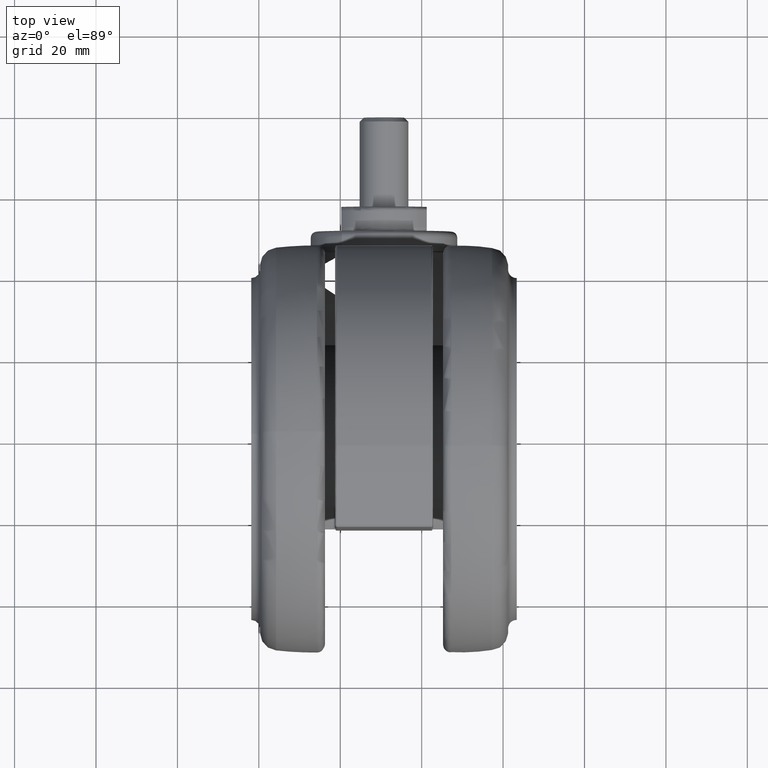
[diagram: clean part render]
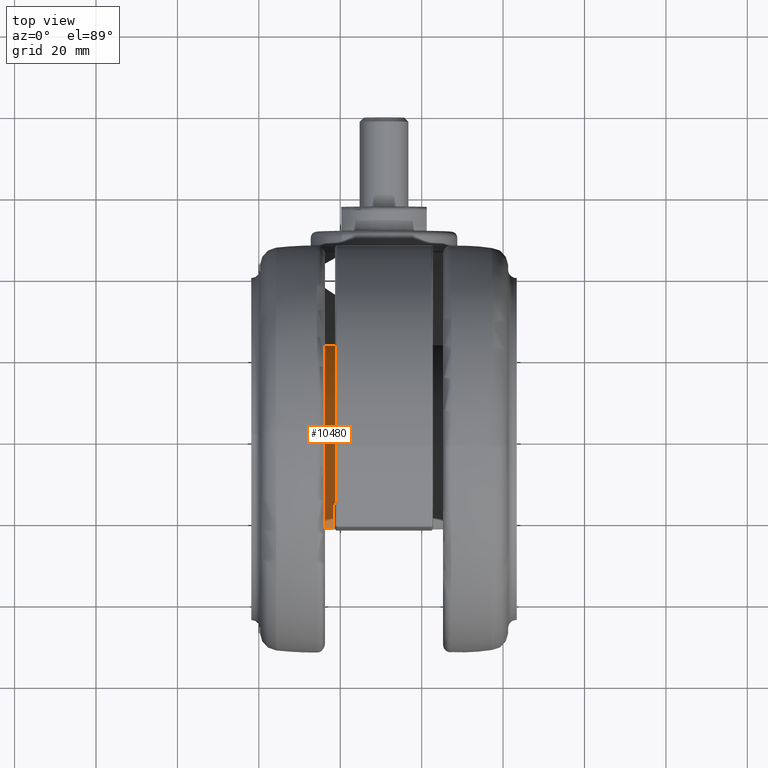
[diagram: same view with one face highlighted and labeled with its STEP entity id]
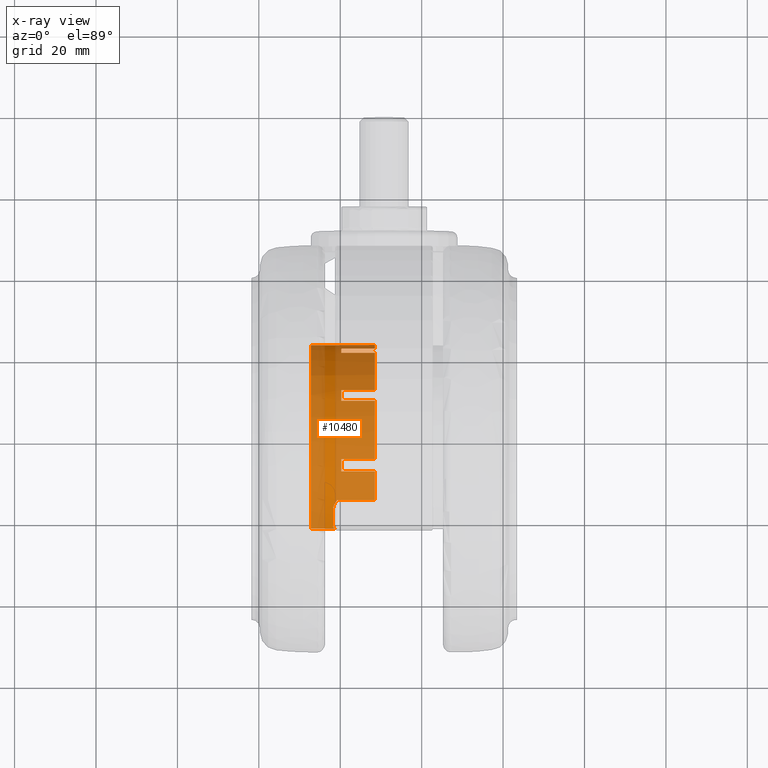
[diagram: x-ray of the same camera — body ghosted, the highlighted face saturated]
A machine part, top view. The second image highlights one B-rep face of the part: STEP entity #10480.
The next image is the same camera in x-ray: the body ghosted, the highlighted face saturated — about 81% of this face is hidden behind the body in this view.
In plain terms, the highlighted cylindrical surface (partial cylindrical patch) has radius 25.55 mm, axis along (1, 0, 0).
Its self-contained STEP definition (entity closure, byte-faithful):
#114 = CARTESIAN_POINT ( 'NONE',  ( 25.25466294829653800, -3.878723060543278300, -44.94061224646511500 ) ) ;
#608 = EDGE_CURVE ( 'NONE', #28450, #16110, #23276, .T. ) ;
#912 = ORIENTED_EDGE ( 'NONE', *, *, #608, .T. ) ;
#943 = CARTESIAN_POINT ( 'NONE',  ( 24.49189158133306100, 7.275853297856507100, -34.85000000000001600 ) ) ;
#1096 = DIRECTION ( 'NONE',  ( -1.049160742689344900E-014, 1.000000000000000000, 0.0000000000000000000 ) ) ;
#1612 = DIRECTION ( 'NONE',  ( 0.0000000000000000000, 0.0000000000000000000, 1.000000000000000000 ) ) ;
#1819 = EDGE_CURVE ( 'NONE', #12330, #40342, #8002, .T. ) ;
#2005 = ORIENTED_EDGE ( 'NONE', *, *, #67107, .T. ) ;
#3130 = CIRCLE ( 'NONE', #25002, 25.55000000000000100 ) ;
#3196 = CARTESIAN_POINT ( 'NONE',  ( -0.0002389668261144548000, 0.0000000000000000000, -45.10000000000001600 ) ) ;
#3420 = EDGE_CURVE ( 'NONE', #48865, #11404, #28216, .T. ) ;
#4076 = CARTESIAN_POINT ( 'NONE',  ( 25.45385519112096200, -2.211694056230213000, -51.10000000000000900 ) ) ;
#4341 = EDGE_CURVE ( 'NONE', #17229, #26471, #34746, .T. ) ;
#4469 = ORIENTED_EDGE ( 'NONE', *, *, #58307, .T. ) ;
#5046 = ORIENTED_EDGE ( 'NONE', *, *, #32058, .T. ) ;
#5110 = CARTESIAN_POINT ( 'NONE',  ( -12.97659623477730600, 22.00946732782261300, -44.10000000000001600 ) ) ;
#5610 = LINE ( 'NONE', #41087, #51151 ) ;
#6011 = VERTEX_POINT ( 'NONE', #28675 ) ;
#6084 = CARTESIAN_POINT ( 'NONE',  ( 25.14111945924305400, -4.557567850544513600, -45.10000000000002300 ) ) ;
#6100 = LINE ( 'NONE', #34488, #67547 ) ;
#6106 = ORIENTED_EDGE ( 'NONE', *, *, #12474, .T. ) ;
#6253 = VECTOR ( 'NONE', #31823, 1000.000000000000000 ) ;
#6405 = CARTESIAN_POINT ( 'NONE',  ( 15.97570374277104400, -19.93920145190548300, -44.10000000000001600 ) ) ;
#6736 = CARTESIAN_POINT ( 'NONE',  ( 21.84054836176586500, -13.26044252424927800, -45.10000000000002300 ) ) ;
#6987 = VERTEX_POINT ( 'NONE', #68593 ) ;
#7264 = ORIENTED_EDGE ( 'NONE', *, *, #23135, .T. ) ;
#7420 = VERTEX_POINT ( 'NONE', #49704 ) ;
#7583 = CARTESIAN_POINT ( 'NONE',  ( -19.88946052371252900, 16.03812226730688900, -44.72771515723317000 ) ) ;
#7658 = CIRCLE ( 'NONE', #9670, 25.55000000000000100 ) ;
#8002 = LINE ( 'NONE', #38523, #23750 ) ;
#8267 = VERTEX_POINT ( 'NONE', #20962 ) ;
#8368 = ORIENTED_EDGE ( 'NONE', *, *, #43323, .T. ) ;
#9114 = VECTOR ( 'NONE', #41285, 1000.000000000000000 ) ;
#9179 = DIRECTION ( 'NONE',  ( 1.582067750417293900E-014, -1.000000000000000000, 0.0000000000000000000 ) ) ;
#9670 = AXIS2_PLACEMENT_3D ( 'NONE', #37253, #1612, #43238 ) ;
#9838 = CIRCLE ( 'NONE', #21915, 25.55000000000000100 ) ;
#9927 = EDGE_CURVE ( 'NONE', #6987, #64603, #60139, .T. ) ;
#9963 = EDGE_CURVE ( 'NONE', #56077, #37820, #47562, .T. ) ;
#10138 = CARTESIAN_POINT ( 'NONE',  ( -0.0002389668261144548000, 0.0000000000000000000, -38.60000000000000900 ) ) ;
#10176 = CARTESIAN_POINT ( 'NONE',  ( 14.08499318997662200, 21.31686503895380000, -34.85000000000001600 ) ) ;
#10461 = DIRECTION ( 'NONE',  ( 0.0000000000000000000, 0.0000000000000000000, -1.000000000000000000 ) ) ;
#10480 = ADVANCED_FACE ( 'NONE', ( #15840 ), #29827, .T. ) ;
#10847 = AXIS2_PLACEMENT_3D ( 'NONE', #31465, #73105, #37485 ) ;
#11357 = CARTESIAN_POINT ( 'NONE',  ( -2.912541867466345900, 25.38347871775896900, -51.10000000000000900 ) ) ;
#11404 = VERTEX_POINT ( 'NONE', #59905 ) ;
#11492 = AXIS2_PLACEMENT_3D ( 'NONE', #72378, #36742, #1096 ) ;
#12062 = B_SPLINE_CURVE_WITH_KNOTS ( 'NONE', 3,
 ( #7583, #13547, #19489, #61123, #25477, #67165, #31481, #73123 ),
 .UNSPECIFIED., .F., .F.,
 ( 4, 2, 2, 4 ),
 ( 0.0000000000000000000, 0.0003150366596726599600, 0.0006300733193453199200, 0.001260146638690652200 ),
 .UNSPECIFIED. ) ;
#12185 = CARTESIAN_POINT ( 'NONE',  ( 11.41809160755038700, 22.85660138546977300, -43.10000000000001600 ) ) ;
#12330 = VERTEX_POINT ( 'NONE', #23819 ) ;
#12355 = CARTESIAN_POINT ( 'NONE',  ( 15.53581716587186400, -20.28623258907077400, -44.58005316722654500 ) ) ;
#12367 = CIRCLE ( 'NONE', #57249, 25.55000000000000100 ) ;
#12474 = EDGE_CURVE ( 'NONE', #48818, #29142, #55536, .T. ) ;
#12706 = CARTESIAN_POINT ( 'NONE',  ( -5.945230450753645500, 24.84873389643883700, -43.10000000000001600 ) ) ;
#13079 = VECTOR ( 'NONE', #10461, 1000.000000000000000 ) ;
#13357 = CARTESIAN_POINT ( 'NONE',  ( -0.0002389668263877612200, 25.55000000000000100, -34.85000000000001600 ) ) ;
#13547 = CARTESIAN_POINT ( 'NONE',  ( -19.83706937117857500, 16.10309366626503200, -44.79395801213961900 ) ) ;
#14281 = DIRECTION ( 'NONE',  ( 0.0000000000000000000, 0.0000000000000000000, 1.000000000000000000 ) ) ;
#14323 = DIRECTION ( 'NONE',  ( 0.0000000000000000000, 0.0000000000000000000, -1.000000000000000000 ) ) ;
#15042 = EDGE_CURVE ( 'NONE', #40342, #57952, #38564, .T. ) ;
#15162 = ORIENTED_EDGE ( 'NONE', *, *, #60404, .T. ) ;
#15549 = VECTOR ( 'NONE', #58173, 1000.000000000000000 ) ;
#15783 = DIRECTION ( 'NONE',  ( 0.0000000000000000000, 0.0000000000000000000, -1.000000000000000000 ) ) ;
#15840 = FACE_OUTER_BOUND ( 'NONE', #27852, .T. ) ;
#16109 = DIRECTION ( 'NONE',  ( 2.026157096190452000E-014, -1.000000000000000000, 0.0000000000000000000 ) ) ;
#16110 = VERTEX_POINT ( 'NONE', #18299 ) ;
#16290 = CARTESIAN_POINT ( 'NONE',  ( -19.88946052371252900, 16.03812226730688900, -50.60000000000000900 ) ) ;
#16584 = ORIENTED_EDGE ( 'NONE', *, *, #49276, .T. ) ;
#16620 = AXIS2_PLACEMENT_3D ( 'NONE', #3196, #44813, #9179 ) ;
#16791 = CARTESIAN_POINT ( 'NONE',  ( -0.0002389668261144548000, 0.0000000000000000000, -34.85000000000001600 ) ) ;
#17028 = ORIENTED_EDGE ( 'NONE', *, *, #56540, .T. ) ;
#17035 = ORIENTED_EDGE ( 'NONE', *, *, #65703, .T. ) ;
#17229 = VERTEX_POINT ( 'NONE', #61016 ) ;
#17410 = CARTESIAN_POINT ( 'NONE',  ( -0.0002389668261144548000, 0.0000000000000000000, -45.10000000000001600 ) ) ;
#17673 = DIRECTION ( 'NONE',  ( 0.0000000000000000000, 0.0000000000000000000, 1.000000000000000000 ) ) ;
#18299 = CARTESIAN_POINT ( 'NONE',  ( 15.97570374277104400, -19.93920145190548300, -44.10000000000001600 ) ) ;
#18334 = CARTESIAN_POINT ( 'NONE',  ( 15.02839855579124700, -20.66332447914533100, -44.94558040547051500 ) ) ;
#18661 = CARTESIAN_POINT ( 'NONE',  ( 21.71919978307618800, -13.45810323544352000, -45.06185391810241500 ) ) ;
#19295 = CARTESIAN_POINT ( 'NONE',  ( -0.0002389668261144548000, 0.0000000000000000000, -43.10000000000001600 ) ) ;
#19351 = CARTESIAN_POINT ( 'NONE',  ( 14.08499318997662200, 21.31686503895380000, -43.10000000000001600 ) ) ;
#19489 = CARTESIAN_POINT ( 'NONE',  ( -19.78042931765698100, 16.17267598930205400, -44.84875829524110500 ) ) ;
#19661 = AXIS2_PLACEMENT_3D ( 'NONE', #20223, #14281, #61875 ) ;
#19707 = DIRECTION ( 'NONE',  ( -0.0000000000000000000, -0.0000000000000000000, -1.000000000000000000 ) ) ;
#19941 = VERTEX_POINT ( 'NONE', #25817 ) ;
#20223 = CARTESIAN_POINT ( 'NONE',  ( -0.0002389668261144548000, 0.0000000000000000000, -51.10000000000000900 ) ) ;
#20962 = CARTESIAN_POINT ( 'NONE',  ( -19.12595873649999200, 16.94135010239459800, -45.10000000000001600 ) ) ;
#21094 = VERTEX_POINT ( 'NONE', #16290 ) ;
#21915 = AXIS2_PLACEMENT_3D ( 'NONE', #10138, #51718, #16109 ) ;
#21965 = B_SPLINE_CURVE_WITH_KNOTS ( 'NONE', 3,
 ( #48331, #6736, #18661, #60284, #24638, #66318, #30642, #72303 ),
 .UNSPECIFIED., .F., .F.,
 ( 4, 2, 2, 4 ),
 ( 0.0000000000000000000, 0.0007051553416117841700, 0.001410310683223568300, 0.002820621366447132800 ),
 .UNSPECIFIED. ) ;
#22497 = CARTESIAN_POINT ( 'NONE',  ( -5.945230450753645500, 24.84873389643883700, -51.10000000000000900 ) ) ;
#22701 = DIRECTION ( 'NONE',  ( 0.0000000000000000000, 0.0000000000000000000, 1.000000000000000000 ) ) ;
#22711 = DIRECTION ( 'NONE',  ( -1.049160742689344900E-014, 1.000000000000000000, 0.0000000000000000000 ) ) ;
#22992 = CARTESIAN_POINT ( 'NONE',  ( 11.41809160755038700, 22.85660138546977300, -51.10000000000000900 ) ) ;
#23060 = DIRECTION ( 'NONE',  ( -0.0000000000000000000, -0.0000000000000000000, -1.000000000000000000 ) ) ;
#23135 = EDGE_CURVE ( 'NONE', #37820, #61586, #51522, .T. ) ;
#23231 = CARTESIAN_POINT ( 'NONE',  ( -2.912541867466345900, 25.38347871775896900, -34.85000000000001600 ) ) ;
#23276 = LINE ( 'NONE', #46107, #13079 ) ;
#23340 = DIRECTION ( 'NONE',  ( 1.049160742689344900E-014, -1.000000000000000000, 0.0000000000000000000 ) ) ;
#23496 = CARTESIAN_POINT ( 'NONE',  ( 23.43864988949472700, 10.16961106341038600, -43.10000000000001600 ) ) ;
#23750 = VECTOR ( 'NONE', #38786, 1000.000000000000000 ) ;
#23819 = CARTESIAN_POINT ( 'NONE',  ( 24.49189158133306100, 7.275853297856507100, -43.10000000000001600 ) ) ;
#24087 = AXIS2_PLACEMENT_3D ( 'NONE', #17410, #59008, #23340 ) ;
#24221 = ORIENTED_EDGE ( 'NONE', *, *, #76709, .T. ) ;
#24307 = CARTESIAN_POINT ( 'NONE',  ( 14.59664753308087400, -20.97064169973484500, -45.10000000000002300 ) ) ;
#24311 = CARTESIAN_POINT ( 'NONE',  ( -0.0002389668261144548000, 0.0000000000000000000, -43.10000000000001600 ) ) ;
#24638 = CARTESIAN_POINT ( 'NONE',  ( 21.35395942350647000, -14.03020971211268300, -44.85716373715065000 ) ) ;
#24703 = CARTESIAN_POINT ( 'NONE',  ( 25.45385519112096200, -2.211694056230213000, -34.85000000000001600 ) ) ;
#24899 = LINE ( 'NONE', #11357, #9114 ) ;
#25002 = AXIS2_PLACEMENT_3D ( 'NONE', #49925, #14323, #55910 ) ;
#25281 = DIRECTION ( 'NONE',  ( 1.049160742689344900E-014, -1.000000000000000000, 0.0000000000000000000 ) ) ;
#25410 = EDGE_CURVE ( 'NONE', #7420, #60445, #74504, .T. ) ;
#25477 = CARTESIAN_POINT ( 'NONE',  ( -19.59678978920343100, 16.39475089634306600, -44.98025785596428200 ) ) ;
#25817 = CARTESIAN_POINT ( 'NONE',  ( -12.97659623477730600, 22.00946732782261300, -34.85000000000001600 ) ) ;
#26471 = VERTEX_POINT ( 'NONE', #56026 ) ;
#26914 = LINE ( 'NONE', #4076, #74406 ) ;
#27783 = AXIS2_PLACEMENT_3D ( 'NONE', #66022, #30347, #71997 ) ;
#27852 = EDGE_LOOP ( 'NONE', ( #16584, #2005, #5046, #70207, #7264, #42729, #17028, #6106, #62746, #54037, #44273, #46571, #29161, #57568, #57741, #15162, #17035, #912, #54696, #74669, #4469, #74799, #64217, #66477, #24221, #56981, #39835, #8368, #39307, #58816 ) ) ;
#28216 = CIRCLE ( 'NONE', #43176, 25.55000000000000100 ) ;
#28450 = VERTEX_POINT ( 'NONE', #52776 ) ;
#28675 = CARTESIAN_POINT ( 'NONE',  ( -19.88946052371252900, 16.03812226730688900, -44.72771515723317000 ) ) ;
#28777 = CARTESIAN_POINT ( 'NONE',  ( -14.55299063437612600, 21.00147275280323100, -45.06259665148791500 ) ) ;
#28953 = CARTESIAN_POINT ( 'NONE',  ( 20.51902854233094700, -15.22373675835378400, -44.10000000000001600 ) ) ;
#29060 = CARTESIAN_POINT ( 'NONE',  ( -12.97659623477730600, 22.00946732782261300, -44.10000000000001600 ) ) ;
#29142 = VERTEX_POINT ( 'NONE', #23496 ) ;
#29161 = ORIENTED_EDGE ( 'NONE', *, *, #60358, .T. ) ;
#29478 = CARTESIAN_POINT ( 'NONE',  ( 25.45385519112096200, -2.211694056230213000, -44.10000000000001600 ) ) ;
#29827 = CYLINDRICAL_SURFACE ( 'NONE', #19661, 25.55000000000000100 ) ;
#30052 = EDGE_CURVE ( 'NONE', #16110, #7420, #75444, .T. ) ;
#30326 = DIRECTION ( 'NONE',  ( 1.049160742689344900E-014, -1.000000000000000000, 0.0000000000000000000 ) ) ;
#30347 = DIRECTION ( 'NONE',  ( 0.0000000000000000000, 0.0000000000000000000, -1.000000000000000000 ) ) ;
#30642 = CARTESIAN_POINT ( 'NONE',  ( 20.76128377350297100, -14.89721377829865300, -44.33599260631510900 ) ) ;
#31028 = EDGE_CURVE ( 'NONE', #26471, #51500, #21965, .T. ) ;
#31465 = CARTESIAN_POINT ( 'NONE',  ( -0.0002389668261144548000, 0.0000000000000000000, -34.85000000000001600 ) ) ;
#31481 = CARTESIAN_POINT ( 'NONE',  ( -19.26659173224484800, 16.78258428675835400, -45.10000000000001600 ) ) ;
#31735 = VECTOR ( 'NONE', #38828, 1000.000000000000000 ) ;
#31823 = DIRECTION ( 'NONE',  ( -0.0000000000000000000, -0.0000000000000000000, -1.000000000000000000 ) ) ;
#31838 = CIRCLE ( 'NONE', #10847, 25.55000000000000100 ) ;
#32058 = EDGE_CURVE ( 'NONE', #45231, #56077, #57644, .T. ) ;
#32162 = VERTEX_POINT ( 'NONE', #23231 ) ;
#34488 = CARTESIAN_POINT ( 'NONE',  ( 14.08499318997662200, 21.31686503895380000, -51.10000000000000900 ) ) ;
#34746 = CIRCLE ( 'NONE', #41251, 25.55000000000000100 ) ;
#34774 = CARTESIAN_POINT ( 'NONE',  ( -14.05068483952885400, 21.34064000625744500, -44.85801837636116600 ) ) ;
#35491 = CARTESIAN_POINT ( 'NONE',  ( 25.41875189796971000, -2.615693210909514100, -44.33537986461824000 ) ) ;
#35747 = CARTESIAN_POINT ( 'NONE',  ( 25.28735480561001500, -3.658712271683971700, -44.85715944239655800 ) ) ;
#36164 = CARTESIAN_POINT ( 'NONE',  ( 23.43864988949472700, 10.16961106341038600, -34.85000000000001600 ) ) ;
#36445 = EDGE_CURVE ( 'NONE', #61586, #60760, #6100, .T. ) ;
#36742 = DIRECTION ( 'NONE',  ( 0.0000000000000000000, 0.0000000000000000000, -1.000000000000000000 ) ) ;
#36862 = CARTESIAN_POINT ( 'NONE',  ( -19.88946052371252900, 16.03812226730688900, -51.10000000000000900 ) ) ;
#37253 = CARTESIAN_POINT ( 'NONE',  ( -0.0002389668261144548000, 0.0000000000000000000, -50.60000000000000900 ) ) ;
#37485 = DIRECTION ( 'NONE',  ( -1.049160742689344900E-014, 1.000000000000000000, 0.0000000000000000000 ) ) ;
#37639 = VERTEX_POINT ( 'NONE', #40062 ) ;
#37820 = VERTEX_POINT ( 'NONE', #12185 ) ;
#38523 = CARTESIAN_POINT ( 'NONE',  ( 24.49189158133306100, 7.275853297856507100, -51.10000000000000900 ) ) ;
#38564 = CIRCLE ( 'NONE', #11492, 25.55000000000000100 ) ;
#38786 = DIRECTION ( 'NONE',  ( 0.0000000000000000000, 0.0000000000000000000, 1.000000000000000000 ) ) ;
#38828 = DIRECTION ( 'NONE',  ( -0.0000000000000000000, -0.0000000000000000000, -1.000000000000000000 ) ) ;
#39307 = ORIENTED_EDGE ( 'NONE', *, *, #64542, .T. ) ;
#39711 = DIRECTION ( 'NONE',  ( -0.0000000000000000000, -0.0000000000000000000, -1.000000000000000000 ) ) ;
#39835 = ORIENTED_EDGE ( 'NONE', *, *, #62363, .T. ) ;
#40062 = CARTESIAN_POINT ( 'NONE',  ( 20.51902854233094700, -15.22373675835378400, -38.60000000000000900 ) ) ;
#40256 = EDGE_CURVE ( 'NONE', #57952, #71286, #26914, .T. ) ;
#40342 = VERTEX_POINT ( 'NONE', #943 ) ;
#40754 = CARTESIAN_POINT ( 'NONE',  ( -13.27951730171163200, 21.83087091156314200, -44.33738582090322200 ) ) ;
#41087 = CARTESIAN_POINT ( 'NONE',  ( 0.1017570411581845800, -25.54979641434265100, -51.10000000000000900 ) ) ;
#41251 = AXIS2_PLACEMENT_3D ( 'NONE', #55349, #19707, #61345 ) ;
#41285 = DIRECTION ( 'NONE',  ( 0.0000000000000000000, 0.0000000000000000000, 1.000000000000000000 ) ) ;
#41604 = VECTOR ( 'NONE', #42258, 1000.000000000000000 ) ;
#41739 = CARTESIAN_POINT ( 'NONE',  ( 25.18136270274158400, -4.329145490519044500, -45.06185316761509100 ) ) ;
#42066 = CARTESIAN_POINT ( 'NONE',  ( 15.75808828169099300, -20.11356210257263300, -44.33872556746245400 ) ) ;
#42256 = EDGE_CURVE ( 'NONE', #21094, #6011, #68539, .T. ) ;
#42258 = DIRECTION ( 'NONE',  ( 0.0000000000000000000, 0.0000000000000000000, 1.000000000000000000 ) ) ;
#42729 = ORIENTED_EDGE ( 'NONE', *, *, #36445, .T. ) ;
#42903 = CARTESIAN_POINT ( 'NONE',  ( 25.45385519112096200, -2.211694056230213000, -44.10000000000001600 ) ) ;
#42973 = CIRCLE ( 'NONE', #24087, 25.55000000000000100 ) ;
#43176 = AXIS2_PLACEMENT_3D ( 'NONE', #24311, #65999, #30326 ) ;
#43238 = DIRECTION ( 'NONE',  ( 1.049160742689344900E-014, -1.000000000000000000, 0.0000000000000000000 ) ) ;
#43323 = EDGE_CURVE ( 'NONE', #19941, #64641, #31838, .T. ) ;
#43358 = DIRECTION ( 'NONE',  ( 0.0000000000000000000, 0.0000000000000000000, 1.000000000000000000 ) ) ;
#43447 = LINE ( 'NONE', #59885, #41604 ) ;
#44273 = ORIENTED_EDGE ( 'NONE', *, *, #15042, .T. ) ;
#44813 = DIRECTION ( 'NONE',  ( -0.0000000000000000000, -0.0000000000000000000, -1.000000000000000000 ) ) ;
#45231 = VERTEX_POINT ( 'NONE', #13357 ) ;
#46107 = CARTESIAN_POINT ( 'NONE',  ( 15.97570374277104400, -19.93920145190548300, -36.60000000000000900 ) ) ;
#46571 = ORIENTED_EDGE ( 'NONE', *, *, #40256, .T. ) ;
#47209 = LINE ( 'NONE', #22497, #15549 ) ;
#47562 = LINE ( 'NONE', #22992, #31735 ) ;
#47670 = CARTESIAN_POINT ( 'NONE',  ( 25.09641169180008200, -4.791724712342766400, -45.10000000000001600 ) ) ;
#48331 = CARTESIAN_POINT ( 'NONE',  ( 21.96235787597041900, -13.05552909386610900, -45.10000000000001600 ) ) ;
#48818 = VERTEX_POINT ( 'NONE', #36164 ) ;
#48865 = VERTEX_POINT ( 'NONE', #12706 ) ;
#49276 = EDGE_CURVE ( 'NONE', #11404, #32162, #24899, .T. ) ;
#49704 = CARTESIAN_POINT ( 'NONE',  ( 14.44363683217974500, -21.07550597027014700, -45.10000000000001600 ) ) ;
#49925 = CARTESIAN_POINT ( 'NONE',  ( -0.0002389668261144548000, 0.0000000000000000000, -34.85000000000001600 ) ) ;
#51151 = VECTOR ( 'NONE', #23060, 1000.000000000000000 ) ;
#51402 = CARTESIAN_POINT ( 'NONE',  ( -0.0002389668261144548000, 0.0000000000000000000, -34.85000000000001600 ) ) ;
#51500 = VERTEX_POINT ( 'NONE', #28953 ) ;
#51522 = CIRCLE ( 'NONE', #71357, 25.55000000000000100 ) ;
#51718 = DIRECTION ( 'NONE',  ( -0.0000000000000000000, -0.0000000000000000000, -1.000000000000000000 ) ) ;
#52272 = CARTESIAN_POINT ( 'NONE',  ( 11.41809160755038700, 22.85660138546977300, -34.85000000000001600 ) ) ;
#52660 = VECTOR ( 'NONE', #43358, 1000.000000000000000 ) ;
#52776 = CARTESIAN_POINT ( 'NONE',  ( 15.97570374277104400, -19.93920145190548300, -38.60000000000000900 ) ) ;
#53300 = CARTESIAN_POINT ( 'NONE',  ( -12.97659623477730600, 22.00946732782261300, -51.10000000000000900 ) ) ;
#53986 = CARTESIAN_POINT ( 'NONE',  ( 15.15998212924641000, -20.56683348311676000, -44.86421764584078900 ) ) ;
#54037 = ORIENTED_EDGE ( 'NONE', *, *, #1819, .T. ) ;
#54696 = ORIENTED_EDGE ( 'NONE', *, *, #30052, .T. ) ;
#55349 = CARTESIAN_POINT ( 'NONE',  ( -0.0002389668261144548000, 0.0000000000000000000, -45.10000000000001600 ) ) ;
#55536 = LINE ( 'NONE', #67500, #6253 ) ;
#55910 = DIRECTION ( 'NONE',  ( -1.049160742689344900E-014, 1.000000000000000000, 0.0000000000000000000 ) ) ;
#56026 = CARTESIAN_POINT ( 'NONE',  ( 21.96235787597041900, -13.05552909386610900, -45.10000000000001600 ) ) ;
#56077 = VERTEX_POINT ( 'NONE', #52272 ) ;
#56540 = EDGE_CURVE ( 'NONE', #60760, #48818, #12367, .T. ) ;
#56981 = ORIENTED_EDGE ( 'NONE', *, *, #9927, .T. ) ;
#57249 = AXIS2_PLACEMENT_3D ( 'NONE', #51402, #15783, #57408 ) ;
#57408 = DIRECTION ( 'NONE',  ( -1.049160742689344900E-014, 1.000000000000000000, 0.0000000000000000000 ) ) ;
#57568 = ORIENTED_EDGE ( 'NONE', *, *, #4341, .T. ) ;
#57644 = CIRCLE ( 'NONE', #71489, 25.55000000000000100 ) ;
#57741 = ORIENTED_EDGE ( 'NONE', *, *, #31028, .T. ) ;
#57952 = VERTEX_POINT ( 'NONE', #24703 ) ;
#58173 = DIRECTION ( 'NONE',  ( -0.0000000000000000000, -0.0000000000000000000, -1.000000000000000000 ) ) ;
#58307 = EDGE_CURVE ( 'NONE', #60445, #66421, #5610, .T. ) ;
#58383 = DIRECTION ( 'NONE',  ( 0.0000000000000000000, 0.0000000000000000000, -1.000000000000000000 ) ) ;
#58402 = CARTESIAN_POINT ( 'NONE',  ( -14.89912906699939300, 20.75633815929389700, -45.10000000000001600 ) ) ;
#58816 = ORIENTED_EDGE ( 'NONE', *, *, #3420, .T. ) ;
#58939 = CARTESIAN_POINT ( 'NONE',  ( -5.945230450753645500, 24.84873389643883700, -34.85000000000001600 ) ) ;
#59008 = DIRECTION ( 'NONE',  ( -0.0000000000000000000, -0.0000000000000000000, -1.000000000000000000 ) ) ;
#59411 = EDGE_CURVE ( 'NONE', #6011, #8267, #12062, .T. ) ;
#59885 = CARTESIAN_POINT ( 'NONE',  ( 20.51902854233094700, -15.22373675835378400, -51.10000000000000900 ) ) ;
#59905 = CARTESIAN_POINT ( 'NONE',  ( -2.912541867466345900, 25.38347871775896900, -43.10000000000001600 ) ) ;
#59953 = CARTESIAN_POINT ( 'NONE',  ( 14.74488064693935000, -20.86658505583551800, -45.06433923896276600 ) ) ;
#60007 = VECTOR ( 'NONE', #17673, 1000.000000000000000 ) ;
#60139 = B_SPLINE_CURVE_WITH_KNOTS ( 'NONE', 3,
 ( #58402, #64429, #28777, #70421, #34774, #76432, #40754, #5110 ),
 .UNSPECIFIED., .F., .F.,
 ( 4, 2, 2, 4 ),
 ( 0.0000000000000000000, 0.0006364135644749759400, 0.001272827128949951900, 0.002545654257899894200 ),
 .UNSPECIFIED. ) ;
#60284 = CARTESIAN_POINT ( 'NONE',  ( 21.47538246303980400, -13.84385230012574700, -44.94061517202923300 ) ) ;
#60358 = EDGE_CURVE ( 'NONE', #71286, #17229, #65914, .T. ) ;
#60404 = EDGE_CURVE ( 'NONE', #51500, #37639, #43447, .T. ) ;
#60445 = VERTEX_POINT ( 'NONE', #66429 ) ;
#60730 = CARTESIAN_POINT ( 'NONE',  ( 0.1017570411581845800, -25.54979641434265100, -50.60000000000000900 ) ) ;
#60760 = VERTEX_POINT ( 'NONE', #10176 ) ;
#60928 = DIRECTION ( 'NONE',  ( -0.0000000000000000000, -0.0000000000000000000, -1.000000000000000000 ) ) ;
#61016 = CARTESIAN_POINT ( 'NONE',  ( 25.09641169180008200, -4.791724712342766400, -45.10000000000001600 ) ) ;
#61123 = CARTESIAN_POINT ( 'NONE',  ( -19.66060335949131900, 16.31813258058874500, -44.94187719189869800 ) ) ;
#61345 = DIRECTION ( 'NONE',  ( 1.049160742689344900E-014, -1.000000000000000000, 0.0000000000000000000 ) ) ;
#61586 = VERTEX_POINT ( 'NONE', #19351 ) ;
#61875 = DIRECTION ( 'NONE',  ( 1.049160742689344900E-014, -1.000000000000000000, 0.0000000000000000000 ) ) ;
#62363 = EDGE_CURVE ( 'NONE', #64603, #19941, #75912, .T. ) ;
#62746 = ORIENTED_EDGE ( 'NONE', *, *, #62914, .T. ) ;
#62914 = EDGE_CURVE ( 'NONE', #29142, #12330, #77193, .T. ) ;
#64217 = ORIENTED_EDGE ( 'NONE', *, *, #42256, .T. ) ;
#64429 = CARTESIAN_POINT ( 'NONE',  ( -14.72419007579232000, 20.88190928769943300, -45.10000000000001600 ) ) ;
#64542 = EDGE_CURVE ( 'NONE', #64641, #48865, #47209, .T. ) ;
#64603 = VERTEX_POINT ( 'NONE', #29060 ) ;
#64641 = VERTEX_POINT ( 'NONE', #58939 ) ;
#65703 = EDGE_CURVE ( 'NONE', #37639, #28450, #9838, .T. ) ;
#65914 = B_SPLINE_CURVE_WITH_KNOTS ( 'NONE', 3,
 ( #29478, #35491, #71393, #35747, #114, #41739, #6084, #47670 ),
 .UNSPECIFIED., .F., .F.,
 ( 4, 2, 2, 4 ),
 ( -1.090853916066069500E-005, 0.001395740350613967000, 0.002099064795501277600, 0.002802389240388589000 ),
 .UNSPECIFIED. ) ;
#65993 = CARTESIAN_POINT ( 'NONE',  ( 14.44363683217974500, -21.07550597027014700, -45.10000000000001600 ) ) ;
#65999 = DIRECTION ( 'NONE',  ( -0.0000000000000000000, -0.0000000000000000000, -1.000000000000000000 ) ) ;
#66022 = CARTESIAN_POINT ( 'NONE',  ( -0.0002389668261144548000, 0.0000000000000000000, -43.10000000000001600 ) ) ;
#66318 = CARTESIAN_POINT ( 'NONE',  ( 20.99585704775295300, -14.56539549702483800, -44.57289677181220400 ) ) ;
#66421 = VERTEX_POINT ( 'NONE', #60730 ) ;
#66429 = CARTESIAN_POINT ( 'NONE',  ( 0.1017570411581845800, -25.54979641434265100, -45.10000000000001600 ) ) ;
#66477 = ORIENTED_EDGE ( 'NONE', *, *, #59411, .T. ) ;
#67107 = EDGE_CURVE ( 'NONE', #32162, #45231, #3130, .T. ) ;
#67165 = CARTESIAN_POINT ( 'NONE',  ( -19.40183149042728100, 16.62592409151377000, -45.07060529254732700 ) ) ;
#67500 = CARTESIAN_POINT ( 'NONE',  ( 23.43864988949472700, 10.16961106341038600, -51.10000000000000900 ) ) ;
#67547 = VECTOR ( 'NONE', #22701, 1000.000000000000000 ) ;
#68539 = LINE ( 'NONE', #36862, #52660 ) ;
#68593 = CARTESIAN_POINT ( 'NONE',  ( -14.89912906699939300, 20.75633815929389700, -45.10000000000001600 ) ) ;
#70207 = ORIENTED_EDGE ( 'NONE', *, *, #9963, .T. ) ;
#70421 = CARTESIAN_POINT ( 'NONE',  ( -14.21447805309672300, 21.23204761869314100, -44.94132639503277500 ) ) ;
#71286 = VERTEX_POINT ( 'NONE', #42903 ) ;
#71357 = AXIS2_PLACEMENT_3D ( 'NONE', #19295, #60928, #25281 ) ;
#71393 = CARTESIAN_POINT ( 'NONE',  ( 25.37420644135466200, -3.020648502249307000, -44.57288812295972500 ) ) ;
#71489 = AXIS2_PLACEMENT_3D ( 'NONE', #16791, #58383, #22711 ) ;
#71997 = DIRECTION ( 'NONE',  ( -1.049160742689344900E-014, 1.000000000000000000, 0.0000000000000000000 ) ) ;
#72303 = CARTESIAN_POINT ( 'NONE',  ( 20.51902854233094700, -15.22373675835378400, -44.10000000000001600 ) ) ;
#72378 = CARTESIAN_POINT ( 'NONE',  ( -0.0002389668261144548000, 0.0000000000000000000, -34.85000000000001600 ) ) ;
#73105 = DIRECTION ( 'NONE',  ( 0.0000000000000000000, 0.0000000000000000000, -1.000000000000000000 ) ) ;
#73123 = CARTESIAN_POINT ( 'NONE',  ( -19.12595873649999200, 16.94135010239459800, -45.10000000000001600 ) ) ;
#74406 = VECTOR ( 'NONE', #39711, 1000.000000000000000 ) ;
#74504 = CIRCLE ( 'NONE', #16620, 25.55000000000000100 ) ;
#74669 = ORIENTED_EDGE ( 'NONE', *, *, #25410, .T. ) ;
#74799 = ORIENTED_EDGE ( 'NONE', *, *, #76306, .T. ) ;
#75444 = B_SPLINE_CURVE_WITH_KNOTS ( 'NONE', 3,
 ( #6405, #42066, #12355, #53986, #18334, #59953, #24307, #65993 ),
 .UNSPECIFIED., .F., .F.,
 ( 4, 2, 2, 4 ),
 ( -7.391437776483500700E-006, 0.001093849766144033500, 0.001644470368104293400, 0.002195090970064554100 ),
 .UNSPECIFIED. ) ;
#75912 = LINE ( 'NONE', #53300, #60007 ) ;
#76306 = EDGE_CURVE ( 'NONE', #66421, #21094, #7658, .T. ) ;
#76432 = CARTESIAN_POINT ( 'NONE',  ( -13.57666757633479700, 21.64774506974373500, -44.57392893934297000 ) ) ;
#76709 = EDGE_CURVE ( 'NONE', #8267, #6987, #42973, .T. ) ;
#77193 = CIRCLE ( 'NONE', #27783, 25.55000000000000100 ) ;